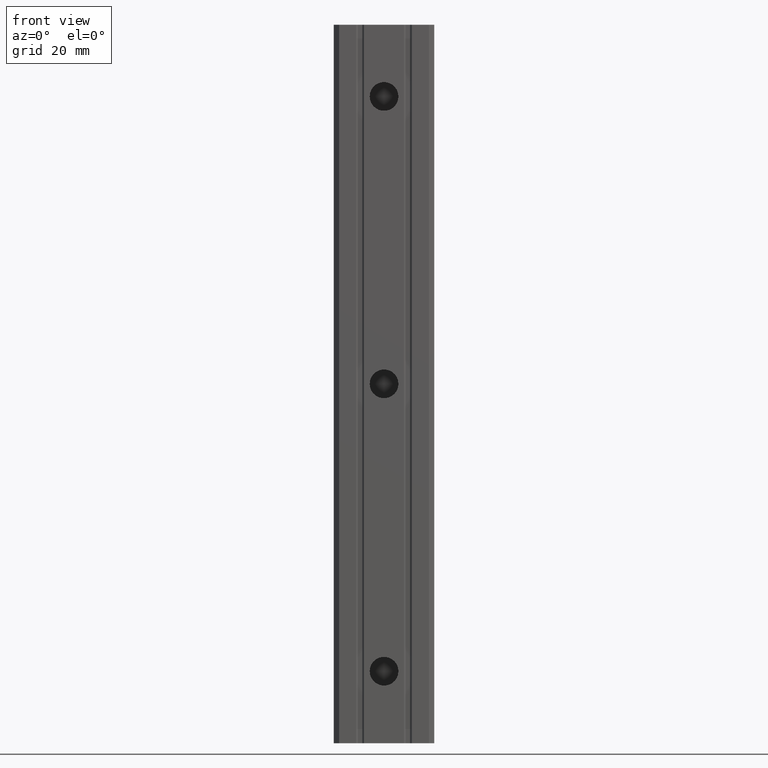
[diagram: clean part render]
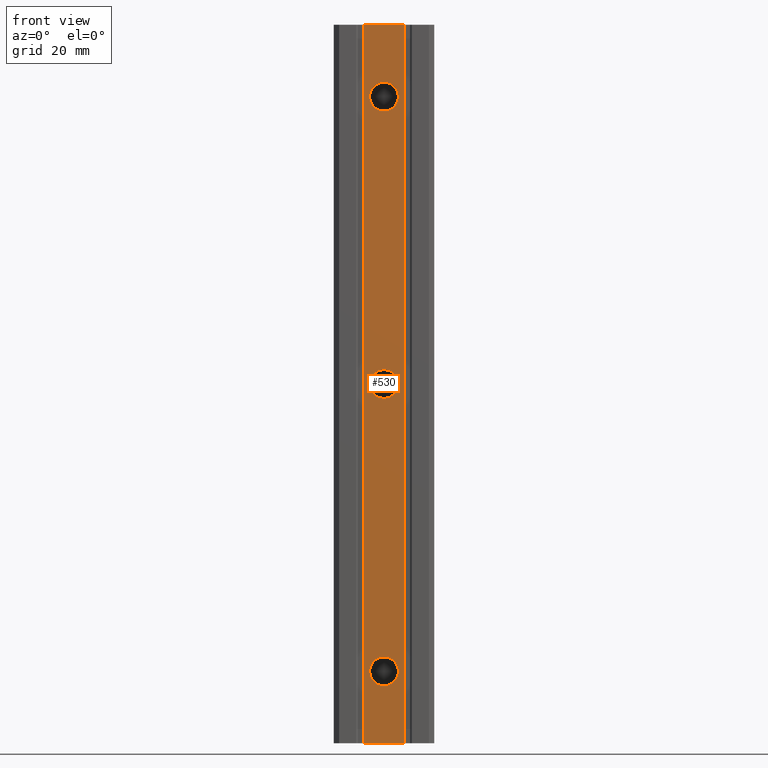
[diagram: same view with one face highlighted and labeled with its STEP entity id]
A machine part, front view. The second image highlights one B-rep face of the part: STEP entity #530.
In plain terms, the highlighted planar face has unit normal (-0, 1, 0).
Its self-contained STEP definition (entity closure, byte-faithful):
#138 = VERTEX_POINT ( 'NONE', #881 ) ;
#140 = EDGE_CURVE ( 'NONE', #138, #141, #880, .T. ) ;
#141 = VERTEX_POINT ( 'NONE', #1008 ) ;
#146 = VERTEX_POINT ( 'NONE', #997 ) ;
#160 = VERTEX_POINT ( 'NONE', #965 ) ;
#162 = EDGE_CURVE ( 'NONE', #160, #163, #964, .T. ) ;
#163 = VERTEX_POINT ( 'NONE', #959 ) ;
#215 = VERTEX_POINT ( 'NONE', #1184 ) ;
#233 = EDGE_CURVE ( 'NONE', #215, #146, #1171, .T. ) ;
#267 = EDGE_CURVE ( 'NONE', #297, #268, #1467, .T. ) ;
#268 = VERTEX_POINT ( 'NONE', #1463 ) ;
#297 = VERTEX_POINT ( 'NONE', #1448 ) ;
#315 = EDGE_CURVE ( 'NONE', #146, #215, #1428, .T. ) ;
#347 = EDGE_CURVE ( 'NONE', #141, #138, #1299, .T. ) ;
#350 = EDGE_CURVE ( 'NONE', #163, #160, #1294, .T. ) ;
#366 = VERTEX_POINT ( 'NONE', #1355 ) ;
#390 = EDGE_CURVE ( 'NONE', #391, #366, #1660, .T. ) ;
#391 = VERTEX_POINT ( 'NONE', #1534 ) ;
#514 = ORIENTED_EDGE ( 'NONE', *, *, #350, .F. ) ;
#515 = ORIENTED_EDGE ( 'NONE', *, *, #162, .F. ) ;
#516 = EDGE_LOOP ( 'NONE', ( #517, #541, #542, #544 ) ) ;
#517 = ORIENTED_EDGE ( 'NONE', *, *, #518, .F. ) ;
#518 = EDGE_CURVE ( 'NONE', #268, #391, #1483, .T. ) ;
#521 = ORIENTED_EDGE ( 'NONE', *, *, #140, .F. ) ;
#522 = EDGE_LOOP ( 'NONE', ( #523, #524 ) ) ;
#523 = ORIENTED_EDGE ( 'NONE', *, *, #315, .F. ) ;
#524 = ORIENTED_EDGE ( 'NONE', *, *, #233, .F. ) ;
#525 = EDGE_LOOP ( 'NONE', ( #514, #515 ) ) ;
#530 = ADVANCED_FACE ( 'NONE', ( #1767, #1766, #1765, #1764 ), #1728, .F. ) ;
#531 = EDGE_LOOP ( 'NONE', ( #532, #521 ) ) ;
#532 = ORIENTED_EDGE ( 'NONE', *, *, #347, .F. ) ;
#541 = ORIENTED_EDGE ( 'NONE', *, *, #267, .F. ) ;
#542 = ORIENTED_EDGE ( 'NONE', *, *, #543, .T. ) ;
#543 = EDGE_CURVE ( 'NONE', #297, #366, #1712, .T. ) ;
#544 = ORIENTED_EDGE ( 'NONE', *, *, #390, .F. ) ;
#878 = CARTESIAN_POINT ( 'NONE',  ( 3.194481716187994100E-013, -25.99999999999995400, 80.00000000000000000 ) ) ;
#879 = AXIS2_PLACEMENT_3D ( 'NONE', #878, #1010, #1009 ) ;
#880 = CIRCLE ( 'NONE', #879, 4.000000000000000000 ) ;
#881 = CARTESIAN_POINT ( 'NONE',  ( -3.999999999999680700, -26.00000000000000400, 80.00000000000000000 ) ) ;
#959 = CARTESIAN_POINT ( 'NONE',  ( 4.000000000000318900, -25.99999999999990400, -80.00000000000000000 ) ) ;
#960 = DIRECTION ( 'NONE',  ( 1.000000000000000000, 1.214306433183765000E-014, 0.0000000000000000000 ) ) ;
#961 = DIRECTION ( 'NONE',  ( 1.228414886632000000E-014, -1.000000000000000000, 0.0000000000000000000 ) ) ;
#962 = CARTESIAN_POINT ( 'NONE',  ( 3.194481716187994100E-013, -25.99999999999995400, -80.00000000000000000 ) ) ;
#963 = AXIS2_PLACEMENT_3D ( 'NONE', #962, #961, #960 ) ;
#964 = CIRCLE ( 'NONE', #963, 4.000000000000000000 ) ;
#965 = CARTESIAN_POINT ( 'NONE',  ( -3.999999999999680700, -26.00000000000000400, -80.00000000000000000 ) ) ;
#997 = CARTESIAN_POINT ( 'NONE',  ( 4.000000000000318900, -25.99999999999990400, 0.0000000000000000000 ) ) ;
#1008 = CARTESIAN_POINT ( 'NONE',  ( 4.000000000000318900, -25.99999999999990400, 80.00000000000000000 ) ) ;
#1009 = DIRECTION ( 'NONE',  ( 1.000000000000000000, 1.214306433183765000E-014, 0.0000000000000000000 ) ) ;
#1010 = DIRECTION ( 'NONE',  ( 1.228414886632000000E-014, -1.000000000000000000, 0.0000000000000000000 ) ) ;
#1167 = DIRECTION ( 'NONE',  ( 1.000000000000000000, 1.214306433183765000E-014, 0.0000000000000000000 ) ) ;
#1168 = DIRECTION ( 'NONE',  ( 1.228414886632000000E-014, -1.000000000000000000, 0.0000000000000000000 ) ) ;
#1169 = CARTESIAN_POINT ( 'NONE',  ( 3.194481716187994100E-013, -25.99999999999995400, 0.0000000000000000000 ) ) ;
#1170 = AXIS2_PLACEMENT_3D ( 'NONE', #1169, #1168, #1167 ) ;
#1171 = CIRCLE ( 'NONE', #1170, 4.000000000000000000 ) ;
#1184 = CARTESIAN_POINT ( 'NONE',  ( -3.999999999999680700, -26.00000000000000400, 4.898587196589412800E-016 ) ) ;
#1249 = VECTOR ( 'NONE', #1251, 1000.000000000000000 ) ;
#1251 = DIRECTION ( 'NONE',  ( 1.000000000000000000, 0.0000000000000000000, 0.0000000000000000000 ) ) ;
#1292 = CARTESIAN_POINT ( 'NONE',  ( 3.194481716187994100E-013, -25.99999999999995400, -80.00000000000000000 ) ) ;
#1293 = AXIS2_PLACEMENT_3D ( 'NONE', #1292, #1385, #1384 ) ;
#1294 = CIRCLE ( 'NONE', #1293, 4.000000000000000000 ) ;
#1296 = DIRECTION ( 'NONE',  ( 1.000000000000000000, 1.214306433183765000E-014, 0.0000000000000000000 ) ) ;
#1297 = DIRECTION ( 'NONE',  ( 1.228414886632000000E-014, -1.000000000000000000, 0.0000000000000000000 ) ) ;
#1298 = AXIS2_PLACEMENT_3D ( 'NONE', #1304, #1297, #1296 ) ;
#1299 = CIRCLE ( 'NONE', #1298, 4.000000000000000000 ) ;
#1304 = CARTESIAN_POINT ( 'NONE',  ( 3.194481716187994100E-013, -25.99999999999995400, 80.00000000000000000 ) ) ;
#1355 = CARTESIAN_POINT ( 'NONE',  ( 5.550000000000000700, -25.99999999999998600, -100.0000000000000000 ) ) ;
#1384 = DIRECTION ( 'NONE',  ( 1.000000000000000000, 1.214306433183765000E-014, 0.0000000000000000000 ) ) ;
#1385 = DIRECTION ( 'NONE',  ( 1.228414886632000000E-014, -1.000000000000000000, 0.0000000000000000000 ) ) ;
#1424 = DIRECTION ( 'NONE',  ( 1.000000000000000000, 1.214306433183765000E-014, 0.0000000000000000000 ) ) ;
#1425 = DIRECTION ( 'NONE',  ( 1.228414886632000000E-014, -1.000000000000000000, 0.0000000000000000000 ) ) ;
#1426 = CARTESIAN_POINT ( 'NONE',  ( 3.194481716187994100E-013, -25.99999999999995400, 0.0000000000000000000 ) ) ;
#1427 = AXIS2_PLACEMENT_3D ( 'NONE', #1426, #1425, #1424 ) ;
#1428 = CIRCLE ( 'NONE', #1427, 4.000000000000000000 ) ;
#1448 = CARTESIAN_POINT ( 'NONE',  ( -5.549999999999876400, -25.99999999999989700, -100.0000000000000000 ) ) ;
#1463 = CARTESIAN_POINT ( 'NONE',  ( -5.549999999999876400, -25.99999999999989700, 100.0000000000000000 ) ) ;
#1464 = DIRECTION ( 'NONE',  ( 0.0000000000000000000, 0.0000000000000000000, 1.000000000000000000 ) ) ;
#1465 = VECTOR ( 'NONE', #1464, 1000.000000000000000 ) ;
#1466 = CARTESIAN_POINT ( 'NONE',  ( -5.549999999999999800, -26.00000000000007100, 0.0000000000000000000 ) ) ;
#1467 = LINE ( 'NONE', #1466, #1465 ) ;
#1482 = CARTESIAN_POINT ( 'NONE',  ( 0.0000000000000000000, -26.00000000000000400, 100.0000000000000000 ) ) ;
#1483 = LINE ( 'NONE', #1482, #1249 ) ;
#1534 = CARTESIAN_POINT ( 'NONE',  ( 5.550000000000000700, -25.99999999999998600, 100.0000000000000000 ) ) ;
#1535 = DIRECTION ( 'NONE',  ( 0.0000000000000000000, 0.0000000000000000000, -1.000000000000000000 ) ) ;
#1536 = VECTOR ( 'NONE', #1535, 1000.000000000000000 ) ;
#1537 = CARTESIAN_POINT ( 'NONE',  ( 5.549999999999999800, -25.99999999999993200, 0.0000000000000000000 ) ) ;
#1660 = LINE ( 'NONE', #1537, #1536 ) ;
#1709 = DIRECTION ( 'NONE',  ( 1.000000000000000000, 0.0000000000000000000, 0.0000000000000000000 ) ) ;
#1710 = VECTOR ( 'NONE', #1709, 1000.000000000000000 ) ;
#1711 = CARTESIAN_POINT ( 'NONE',  ( 0.0000000000000000000, -26.00000000000000400, -100.0000000000000000 ) ) ;
#1712 = LINE ( 'NONE', #1711, #1710 ) ;
#1724 = DIRECTION ( 'NONE',  ( -1.000000000000000000, -1.228414886632000000E-014, 0.0000000000000000000 ) ) ;
#1725 = DIRECTION ( 'NONE',  ( -1.228414886632000000E-014, 1.000000000000000000, 0.0000000000000000000 ) ) ;
#1726 = CARTESIAN_POINT ( 'NONE',  ( 3.193878705242999900E-013, -26.00000000000000400, 0.0000000000000000000 ) ) ;
#1727 = AXIS2_PLACEMENT_3D ( 'NONE', #1726, #1725, #1724 ) ;
#1728 = PLANE ( 'NONE',  #1727 ) ;
#1764 = FACE_OUTER_BOUND ( 'NONE', #516, .T. ) ;
#1765 = FACE_BOUND ( 'NONE', #525, .T. ) ;
#1766 = FACE_BOUND ( 'NONE', #522, .T. ) ;
#1767 = FACE_BOUND ( 'NONE', #531, .T. ) ;